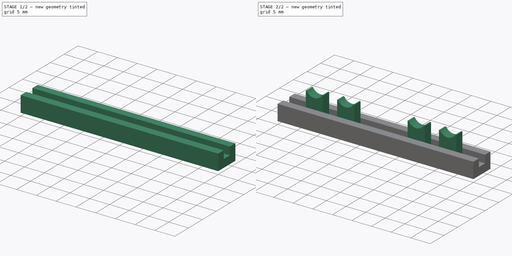
[diagram: build sequence overview — one tinted view per stage of 2, left to right]
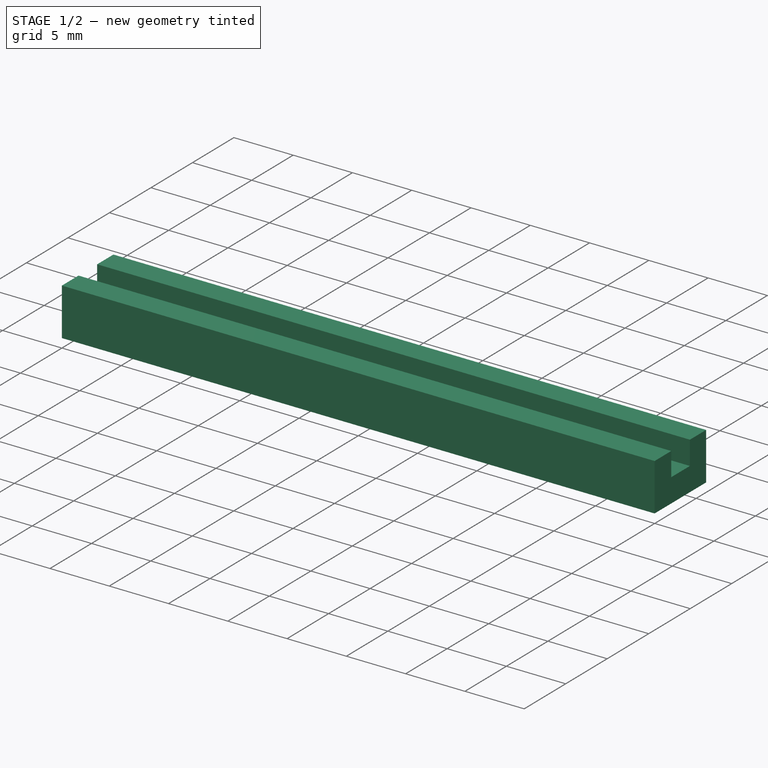
[diagram: stage 1 of 2 — iso view after this stage's code; geometry added in this stage tinted green]
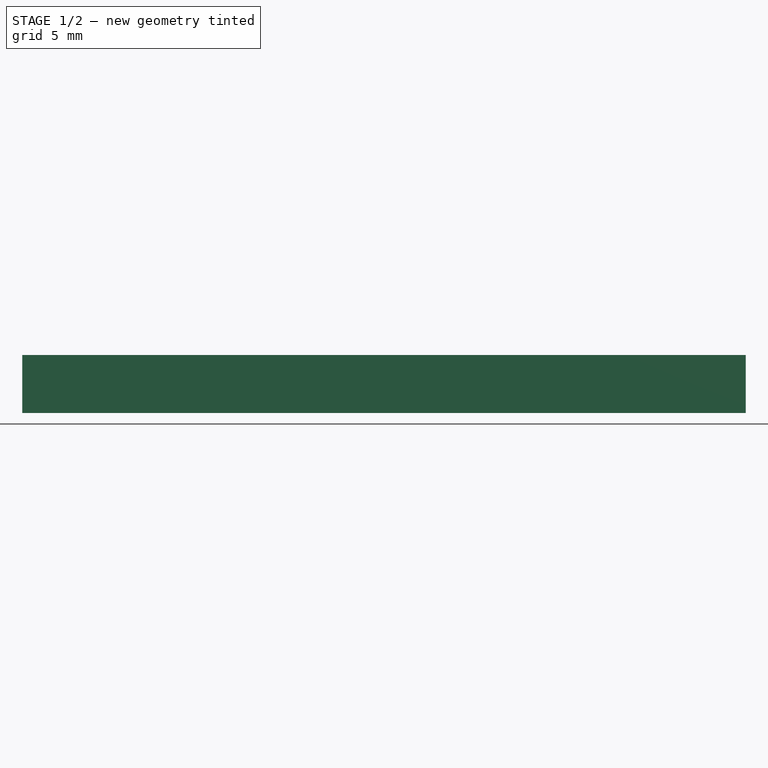
[diagram: stage 1 of 2 — front view after this stage's code; geometry added in this stage tinted green]
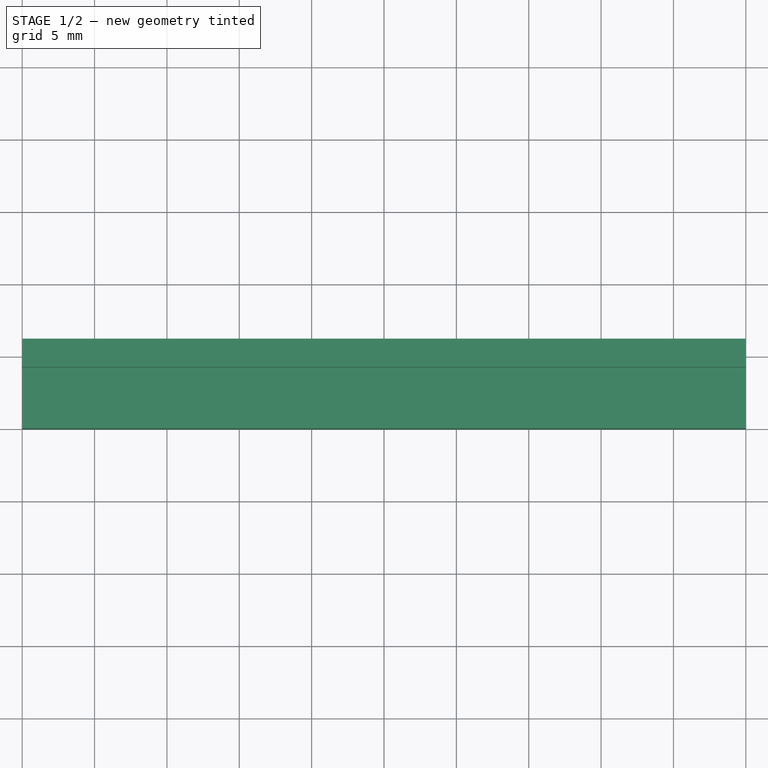
[diagram: stage 1 of 2 — top view after this stage's code; geometry added in this stage tinted green]
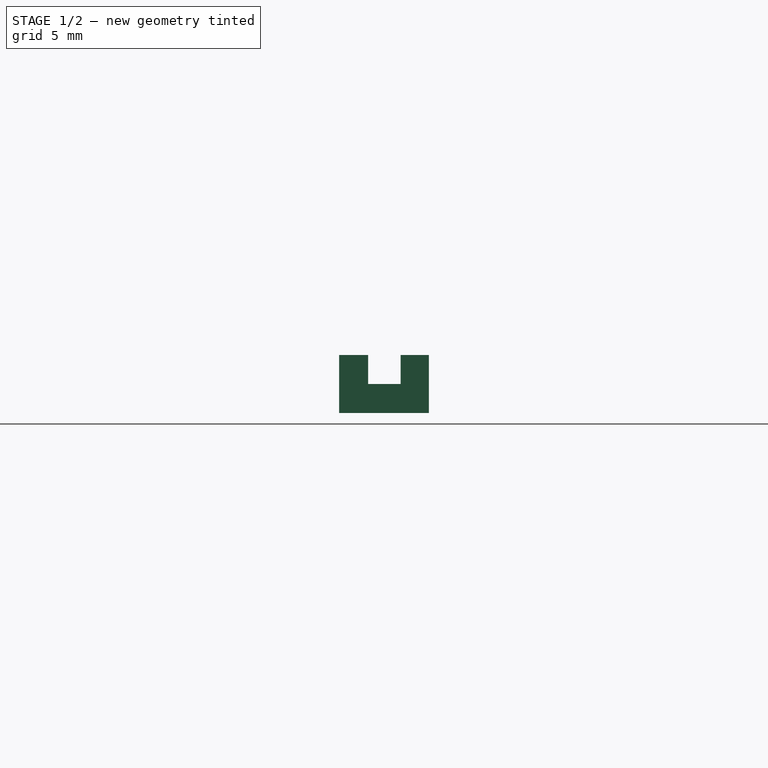
[diagram: stage 1 of 2 — right view after this stage's code; geometry added in this stage tinted green]
FCSTD DOCUMENT  (FreeCAD 0.19R24291 (Git))
Label: ResponseBox_testPlateTOP2b
License: All rights reserved
LicenseURL: http://en.wikipedia.org/wiki/All_rights_reserved
objects: Sketcher::SketchObject×4, PartDesign::Pad×2, PartDesign::Pocket×2, PartDesign::Body×1
note: 13 computed .brp shape members not serialized (recipe doc carries the construction recipe); baked Part::Feature solids carry a one-line shape summary decoded from their .brp

FEATURE [Sketcher::SketchObject] Sketch
  FullyConstrained = true
  MapMode = 5
  Support = -> [XY_Plane]
  sketch-geometry (4):
    g0: LineSegment StartX=0 StartY=0 StartZ=0 EndX=50 EndY=0 EndZ=0
    g1: LineSegment StartX=50 StartY=0 StartZ=0 EndX=50 EndY=6.2 EndZ=0
    g2: LineSegment StartX=50 StartY=6.2 StartZ=0 EndX=0 EndY=6.2 EndZ=0
    g3: LineSegment StartX=0 StartY=6.2 StartZ=0 EndX=0 EndY=0 EndZ=0
  constraints (11):
    c: Coincident(g0,g1)
    c: Coincident(g1,g2)
    c: Coincident(g2,g3)
    c: Coincident(g3,g0)
    c: Horizontal(g0)
    c: Horizontal(g2)
    c: Vertical(g1)
    c: Vertical(g3)
    c: Coincident(g0,g-1)
    c: DistanceX(g2,g2) = 50
    c: DistanceY(g3,g3) = 6.2
FEATURE [PartDesign::Pad] Pad  label="Wall_top"
  Direction = (1,1,1)
  Length = 4
  Length2 = 100
  Profile = -> Sketch
  Type = 0
FEATURE [Sketcher::SketchObject] Sketch001
  FullyConstrained = true
  MapMode = 5
  Placement = pos=(0,0,4) rot=(0,0,1;0rad)
  Support = -> [Pad]
  sketch-geometry (4):
    g0: LineSegment StartX=0 StartY=4.25 StartZ=0 EndX=50 EndY=4.25 EndZ=0
    g1: LineSegment StartX=50 StartY=4.25 StartZ=0 EndX=50 EndY=2 EndZ=0
    g2: LineSegment StartX=50 StartY=2 StartZ=0 EndX=0 EndY=2 EndZ=0
    g3: LineSegment StartX=0 StartY=2 StartZ=0 EndX=0 EndY=4.25 EndZ=0
  constraints (12):
    c: Coincident(g0,g1)
    c: Coincident(g1,g2)
    c: Coincident(g2,g3)
    c: Coincident(g3,g0)
    c: Horizontal(g0)
    c: Horizontal(g2)
    c: Vertical(g1)
    c: Vertical(g3)
    c: DistanceX(g-1,g2) = 0
    c: DistanceX(g0,g0) = 50
    c: DistanceY(g-1,g2) = 2
    c: DistanceY(g1,g1) = 2.25
FEATURE [PartDesign::Pocket] Pocket  label="Trough"
  BaseFeature = -> Pad
  Length = 2
  Length2 = 100
  Profile = -> Sketch001
  Type = 0
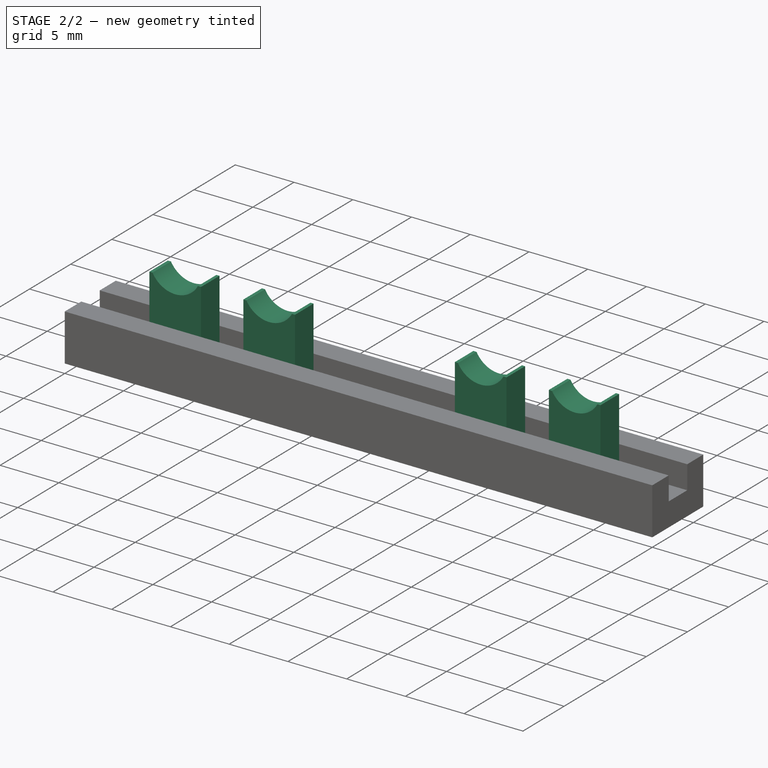
[diagram: stage 2 of 2 — iso view after this stage's code; geometry added in this stage tinted green]
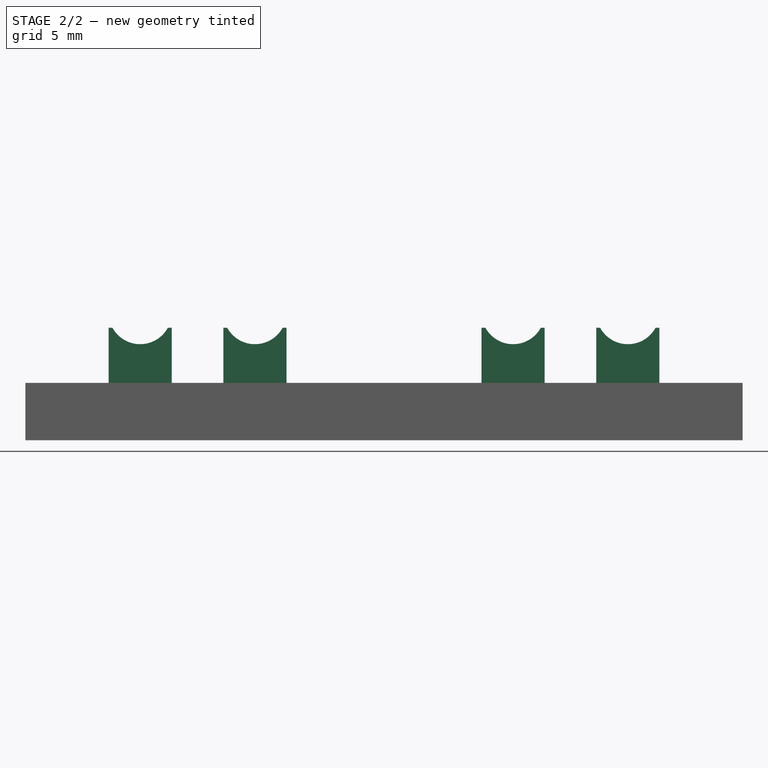
[diagram: stage 2 of 2 — front view after this stage's code; geometry added in this stage tinted green]
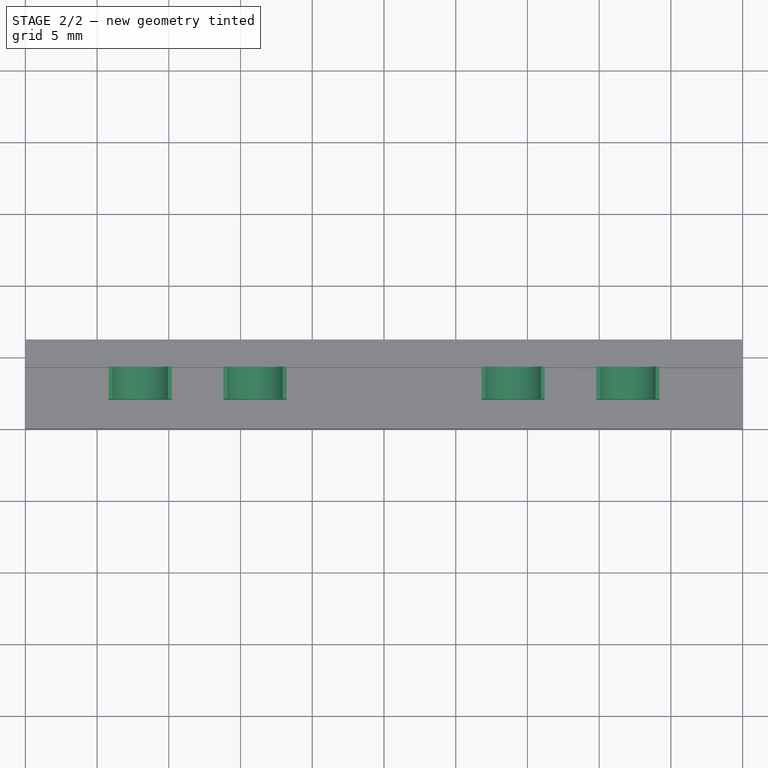
[diagram: stage 2 of 2 — top view after this stage's code; geometry added in this stage tinted green]
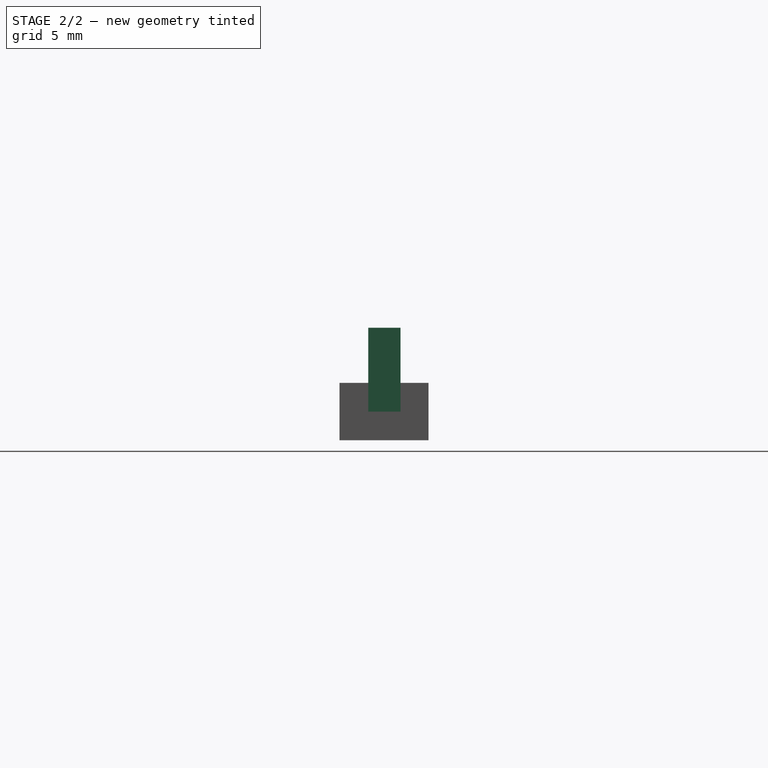
[diagram: stage 2 of 2 — right view after this stage's code; geometry added in this stage tinted green]
FEATURE [Sketcher::SketchObject] Sketch002
  FullyConstrained = true
  MapMode = 5
  Placement = pos=(0,4.25,0) rot=(1,0,0;1.5708rad)
  Support = -> [Pocket]
  sketch-geometry (16):
    g0: LineSegment StartX=5.8 StartY=2 StartZ=0 EndX=10.2 EndY=2 EndZ=0
    g1: LineSegment StartX=10.2 StartY=2 StartZ=0 EndX=10.2 EndY=8.9 EndZ=0
    g2: LineSegment StartX=5.8 StartY=8.9 StartZ=0 EndX=5.8 EndY=2 EndZ=0
    g3: LineSegment StartX=13.8 StartY=2 StartZ=0 EndX=18.2 EndY=2 EndZ=0
    g4: LineSegment StartX=18.2 StartY=2 StartZ=0 EndX=18.2 EndY=8.9 EndZ=0
    g5: LineSegment StartX=13.8 StartY=8.9 StartZ=0 EndX=13.8 EndY=2 EndZ=0
    g6: ArcOfCircle CenterX=8 CenterY=8.9 CenterZ=0 NormalX=0 NormalY=0 NormalZ=1 AngleXU=0 Radius=2.2 StartAngle=3.14159 EndAngle=6.28319
    g7: ArcOfCircle CenterX=16 CenterY=8.9 CenterZ=0 NormalX=0 NormalY=0 NormalZ=1 AngleXU=0 Radius=2.2 StartAngle=3.14159 EndAngle=6.28319
    g8: ArcOfCircle CenterX=34 CenterY=8.9 CenterZ=0 NormalX=0 NormalY=0 NormalZ=1 AngleXU=0 Radius=2.2 StartAngle=3.14159 EndAngle=6.28319
    g9: ArcOfCircle CenterX=42 CenterY=8.9 CenterZ=0 NormalX=0 NormalY=0 NormalZ=1 AngleXU=0 Radius=2.2 StartAngle=3.14159 EndAngle=6.28319
    g10: LineSegment StartX=36.2 StartY=8.9 StartZ=0 EndX=36.2 EndY=2 EndZ=0
    g11: LineSegment StartX=36.2 StartY=2 StartZ=0 EndX=31.8 EndY=2 EndZ=0
    g12: LineSegment StartX=31.8 StartY=2 StartZ=0 EndX=31.8 EndY=8.9 EndZ=0
    g13: LineSegment StartX=44.2 StartY=8.9 StartZ=0 EndX=44.2 EndY=2 EndZ=0
    g14: LineSegment StartX=44.2 StartY=2 StartZ=0 EndX=39.8 EndY=2 EndZ=0
    g15: LineSegment StartX=39.8 StartY=2 StartZ=0 EndX=39.8 EndY=8.9 EndZ=0
  constraints (52):
    c: Coincident(g0,g1)
    c: Coincident(g2,g0)
    c: Horizontal(g0)
    c: Vertical(g1)
    c: Vertical(g2)
    c: Coincident(g3,g4)
    c: Coincident(g5,g3)
    c: Horizontal(g3)
    c: Vertical(g4)
    c: Vertical(g5)
    c: DistanceX(g2,g1) = 4.4
    c: DistanceX(g5,g4) = 4.4
    c: DistanceY(g6,g1) = 0
    c: DistanceY(g7,g4) = 0
    c: DistanceY(g-1,g0) = 2
    c: DistanceY(g-1,g3) = 2
    c: DistanceX(g-1,g6) = 8
    c: DistanceX(g6,g7) = 8
    c: DistanceY(g7,g6) = 0
    c: DistanceY(g0,g6) = 6.9
    c: Coincident(g6,g1)
    c: Coincident(g7,g4)
    c: Coincident(g10,g11)
    c: Coincident(g11,g12)
    c: Horizontal(g11)
    c: Vertical(g10)
    c: Vertical(g12)
    c: Coincident(g13,g14)
    c: Coincident(g14,g15)
    c: Horizontal(g14)
    c: Vertical(g13)
    c: Vertical(g15)
    c: DistanceX(g12,g10) = 4.4
    c: DistanceX(g15,g13) = 4.4
    c: DistanceY(g10,g8) = 0
    c: DistanceY(g13,g9) = 0
    c: DistanceY(g3,g11) = 0
    c: DistanceY(g10,g14) = 0
    c: DistanceY(g7,g8) = 0
    c: DistanceY(g8,g9) = 0
    c: DistanceX(g8,g9) = 8
    c: DistanceX(g7,g8) = 18
    c: Coincident(g8,g12)
    c: Coincident(g9,g15)
    c: DistanceY(g12,g12) = 6.9
    c: Coincident(g2,g6)
    c: Coincident(g5,g7)
    c: DistanceY(g5,g5) = 6.9
    c: DistanceY(g2,g2) = 6.9
    c: Coincident(g8,g10)
    c: Coincident(g9,g13)
    c: DistanceY(g15,g15) = 6.9
FEATURE [PartDesign::Pad] Pad001  label="Channel_inserts"
  BaseFeature = -> Pocket
  Direction = (1,1,1)
  Length = 2.25
  Length2 = 100
  Profile = -> Sketch002
  Type = 0
FEATURE [Sketcher::SketchObject] Sketch003
  FullyConstrained = true
  MapMode = 5
  Placement = pos=(0,2,0) rot=(0,0.707107,0.707107;3.14159rad)
  Support = -> [Pad001]
  sketch-geometry (4):
    g0: LineSegment StartX=3.59465 StartY=10.3219 StartZ=0 EndX=-55.016 EndY=10.3219 EndZ=0
    g1: LineSegment StartX=-55.016 StartY=10.3219 StartZ=0 EndX=-55.016 EndY=7.84886 EndZ=0
    g2: LineSegment StartX=-55.016 StartY=7.84886 StartZ=0 EndX=3.59465 EndY=7.84886 EndZ=0
    g3: LineSegment StartX=3.59465 StartY=7.84886 StartZ=0 EndX=3.59465 EndY=10.3219 EndZ=0
  constraints (12):
    c: Coincident(g0,g1)
    c: Coincident(g1,g2)
    c: Coincident(g2,g3)
    c: Coincident(g3,g0)
    c: Horizontal(g0)
    c: Horizontal(g2)
    c: Vertical(g1)
    c: Vertical(g3)
    c: DistanceX(g2) = 3.59465
    c: DistanceY(g2) = 7.84886
    c: DistanceX(g0) = -55.016
    c: DistanceY(g0) = 10.3219
FEATURE [PartDesign::Pocket] Pocket001  label="Insert_truncate"
  BaseFeature = -> Pad001
  Length = 5
  Length2 = 5
  Profile = -> Sketch003
  Type = 4
FEATURE [PartDesign::Body] Body
  Group = -> [Sketch,Pad,Sketch001,Pocket,Sketch002,Pad001,Sketch003,Pocket001]
  Origin = -> Origin
  Tip = -> Pocket001
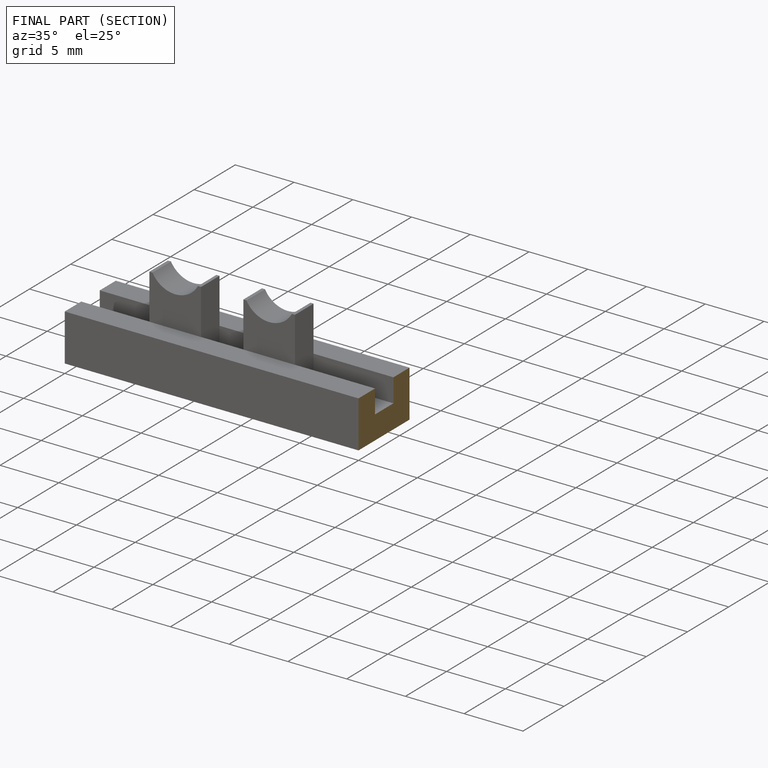
[diagram: finished part — half-section view (interior)]
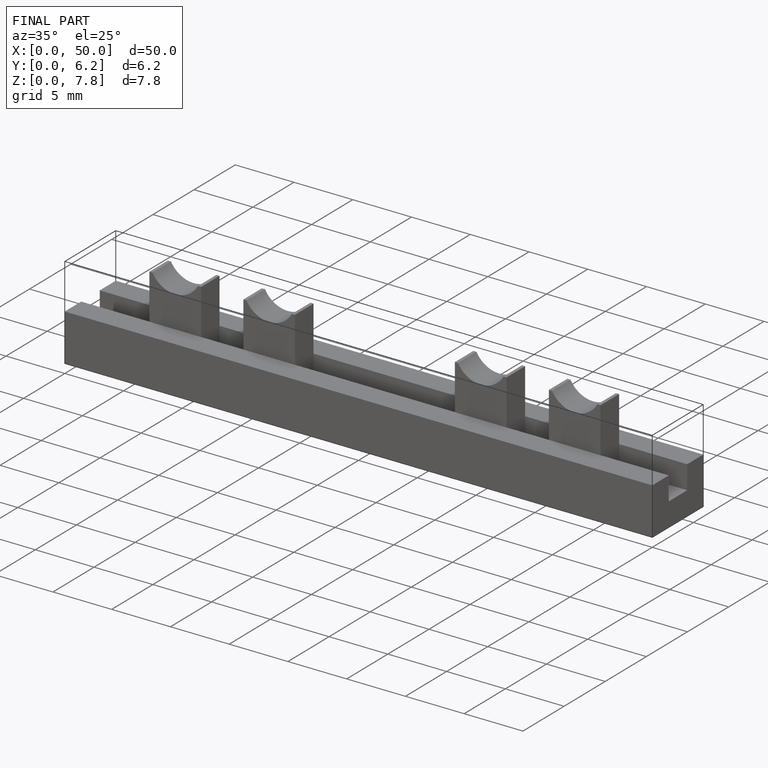
[diagram: finished part — iso view with bounding-box wireframe]
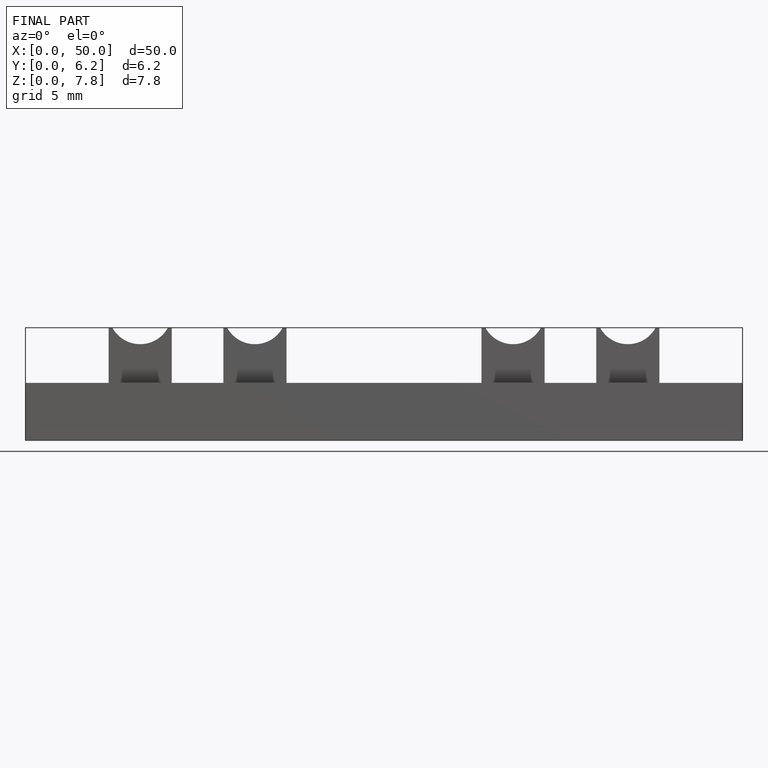
[diagram: finished part — front view with bounding-box wireframe]
